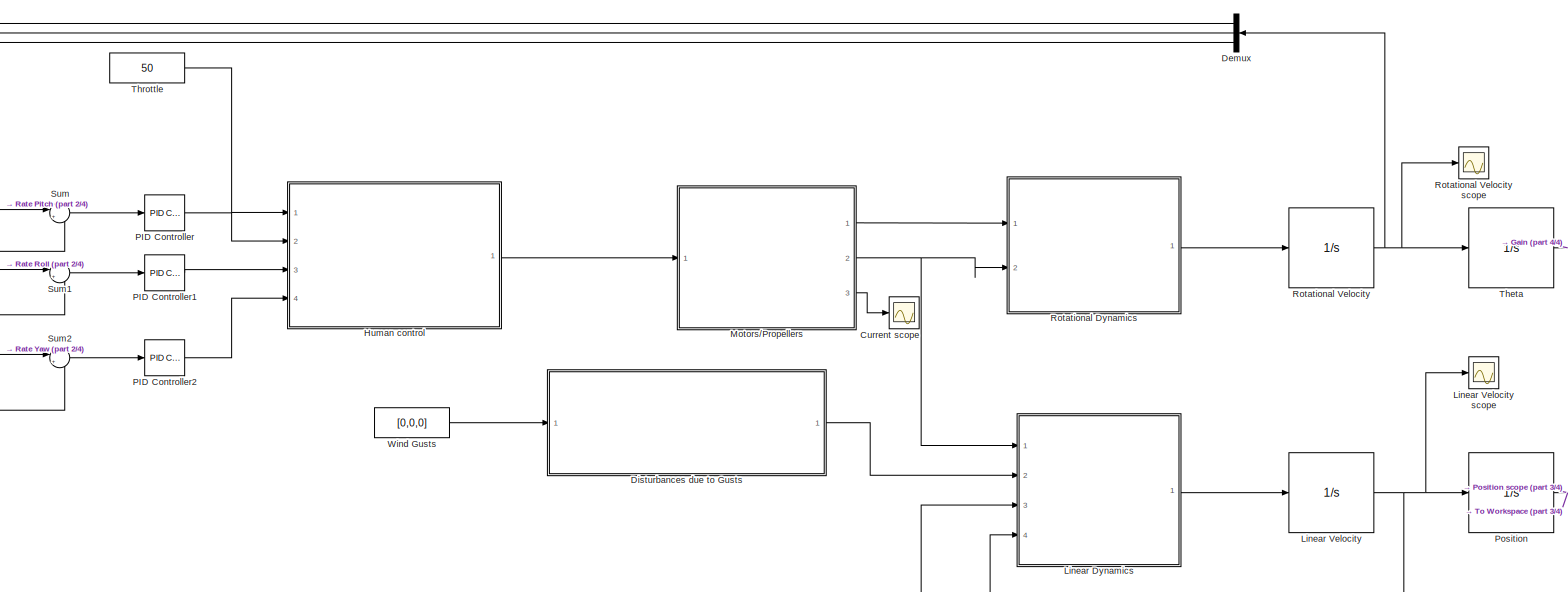
[diagram: root canvas - part 1/4, center side, full height]
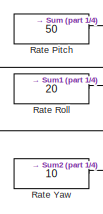
[diagram: root canvas - part 2/4, middle left region]
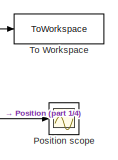
[diagram: root canvas - part 3/4, middle right region]
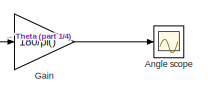
[diagram: root canvas - part 4/4, bottom right region]
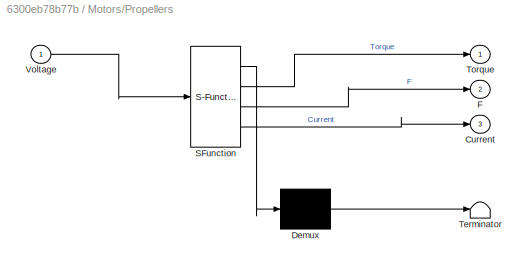
MODEL slx_6300eb78b77b
KIND model
CONFIG AbsTol = auto
CONFIG EnableMultiTasking = off
CONFIG FixedStep = auto
CONFIG MaxStep = auto
CONFIG MinStep = auto
CONFIG RelTol = 1e-3
CONFIG SampleTimeConstraint = Unconstrained
CONFIG SolverName = VariableStepAuto
CONFIG StartTime = 0.0
CONFIG StopTime = 10.0
BLOCK [Scope] Angle scope
  Floating = off
  NumInputPorts = 1
  Ports = [1]
  ScopeSpecificationString = Simulink.scopes.TimeScopeBlockCfg('CurrentConfiguration', extmgr.ConfigurationSet(extmgr.Configuration('Core','General UI',true),extmgr.Configuration('Core','Source UI',true),extmgr.Configuration('Sources','WiredSimulink',true,'DataLoggingVariableName','ScopeData1'),extmgr.Configuration('Visuals','Time Domain',true,'SerializedDisplays',{struct('MinYLimReal','-0.00000009','MaxYLimReal','0.00000079'...<+1502ch>
BLOCK [Scope] Current scope
  Floating = off
  NumInputPorts = 1
  Ports = [1]
  ScopeSpecificationString = Simulink.scopes.TimeScopeBlockCfg('CurrentConfiguration', extmgr.ConfigurationSet(extmgr.Configuration('Core','General UI',true),extmgr.Configuration('Core','Source UI',true),extmgr.Configuration('Sources','WiredSimulink',true,'DataLoggingVariableName','ScopeData6'),extmgr.Configuration('Visuals','Time Domain',true,'SerializedDisplays',{struct('MinYLimReal','54.939','MaxYLimReal','56.05503','YLabe...<+1501ch>
BLOCK [Demux] Demux
  Outputs = 3
  Ports = [1, 3]
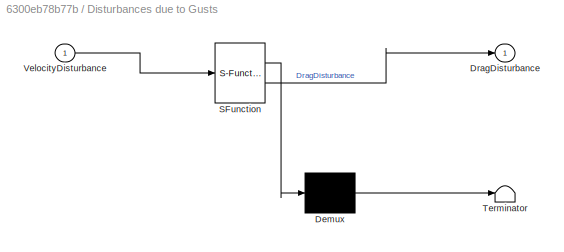
BLOCK [SubSystem] Disturbances due to Gusts
  ErrorFcn = Stateflow.Translate.translate
  PermitHierarchicalResolution = ExplicitOnly
  Ports = [1, 1]
  RequestExecContextInheritance = off
  SFBlockType = MATLAB Function
  TreatAsAtomicUnit = on
BLOCK [Demux] Disturbances due to Gusts/ Demux 
  Outputs = 1
  Ports = [1, 1]
BLOCK [S-Function] Disturbances due to Gusts/ SFunction 
  EnableBusSupport = on
  FunctionName = sf_sfun
  PortCounts = [1 2]
  Ports = [1, 2]
  SFcnIsStateOwnerBlock = off
  SFunctionDeploymentMode = off
  Tag = Stateflow S-Function 4
BLOCK [Terminator] Disturbances due to Gusts/ Terminator 
BLOCK [Outport] Disturbances due to Gusts/DragDisturbance
BLOCK [Inport] Disturbances due to Gusts/VelocityDisturbance
BLOCK [Gain] Gain
  Gain = 180/pi()
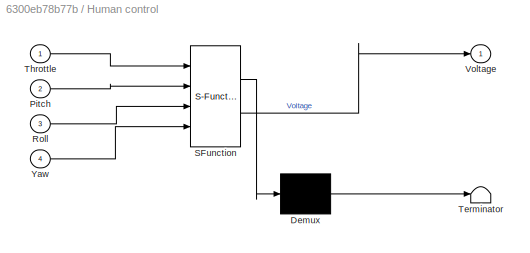
BLOCK [SubSystem] Human control
  ErrorFcn = Stateflow.Translate.translate
  PermitHierarchicalResolution = ExplicitOnly
  Ports = [4, 1]
  RequestExecContextInheritance = off
  SFBlockType = MATLAB Function
  TreatAsAtomicUnit = on
BLOCK [Demux] Human control/ Demux 
  Outputs = 1
  Ports = [1, 1]
BLOCK [S-Function] Human control/ SFunction 
  EnableBusSupport = on
  FunctionName = sf_sfun
  PortCounts = [4 2]
  Ports = [4, 2]
  SFcnIsStateOwnerBlock = off
  SFunctionDeploymentMode = off
  Tag = Stateflow S-Function 5
BLOCK [Terminator] Human control/ Terminator 
BLOCK [Inport] Human control/Pitch
  Port = 2
BLOCK [Inport] Human control/Roll
  Port = 3
BLOCK [Inport] Human control/Throttle
BLOCK [Outport] Human control/Voltage
BLOCK [Inport] Human control/Yaw
  Port = 4
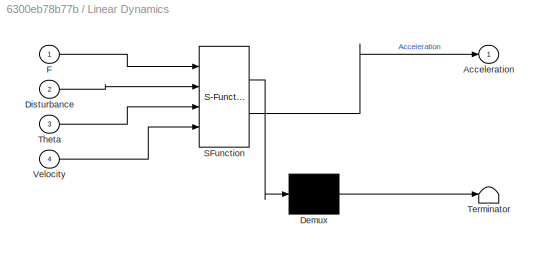
BLOCK [SubSystem] Linear Dynamics
  ErrorFcn = Stateflow.Translate.translate
  PermitHierarchicalResolution = ExplicitOnly
  Ports = [4, 1]
  RequestExecContextInheritance = off
  SFBlockType = MATLAB Function
  TreatAsAtomicUnit = on
BLOCK [Demux] Linear Dynamics/ Demux 
  Outputs = 1
  Ports = [1, 1]
BLOCK [S-Function] Linear Dynamics/ SFunction 
  EnableBusSupport = on
  FunctionName = sf_sfun
  PortCounts = [4 2]
  Ports = [4, 2]
  SFcnIsStateOwnerBlock = off
  SFunctionDeploymentMode = off
  Tag = Stateflow S-Function 3
BLOCK [Terminator] Linear Dynamics/ Terminator 
BLOCK [Outport] Linear Dynamics/Acceleration
BLOCK [Inport] Linear Dynamics/Disturbance
  Port = 2
BLOCK [Inport] Linear Dynamics/F
BLOCK [Inport] Linear Dynamics/Theta
  Port = 3
BLOCK [Inport] Linear Dynamics/Velocity
  Port = 4
BLOCK [Integrator] Linear Velocity
  Ports = [1, 1]
BLOCK [Scope] Linear Velocity scope
  Floating = off
  NumInputPorts = 1
  Ports = [1]
  ScopeSpecificationString = Simulink.scopes.TimeScopeBlockCfg('CurrentConfiguration', extmgr.ConfigurationSet(extmgr.Configuration('Core','General UI',true),extmgr.Configuration('Core','Source UI',true),extmgr.Configuration('Sources','WiredSimulink',true),extmgr.Configuration('Visuals','Time Domain',true,'SerializedDisplays',{struct('MinYLimReal','-1.60355','MaxYLimReal','14.43198','YLabelReal','','MinYLimMag','0.00000','Max...<+1408ch>
BLOCK [SubSystem] Motors//Propellers
  ErrorFcn = Stateflow.Translate.translate
  PermitHierarchicalResolution = ExplicitOnly
  Ports = [1, 3]
  RequestExecContextInheritance = off
  SFBlockType = MATLAB Function
  TreatAsAtomicUnit = on
BLOCK [Demux] Motors//Propellers/ Demux 
  Outputs = 1
  Ports = [1, 1]
BLOCK [S-Function] Motors//Propellers/ SFunction 
  EnableBusSupport = on
  FunctionName = sf_sfun
  PortCounts = [1 4]
  Ports = [1, 4]
  SFcnIsStateOwnerBlock = off
  SFunctionDeploymentMode = off
  Tag = Stateflow S-Function 2
BLOCK [Terminator] Motors//Propellers/ Terminator 
BLOCK [Outport] Motors//Propellers/Current
  Port = 3
BLOCK [Outport] Motors//Propellers/F
  Port = 2
BLOCK [Outport] Motors//Propellers/Torque
BLOCK [Inport] Motors//Propellers/Voltage
BLOCK [Reference] PID Controller  REF=pid_lib/PID Controller
  Ports = [1, 1]
  SourceBlock = pid_lib/PID Controller
  SourceProductBaseCode = SL
  SourceType = PID 1dof
BLOCK [Reference] PID Controller1  REF=pid_lib/PID Controller
  Ports = [1, 1]
  SourceBlock = pid_lib/PID Controller
  SourceProductBaseCode = SL
  SourceType = PID 1dof
BLOCK [Reference] PID Controller2  REF=pid_lib/PID Controller
  Ports = [1, 1]
  SourceBlock = pid_lib/PID Controller
  SourceProductBaseCode = SL
  SourceType = PID 1dof
BLOCK [Integrator] Position
  Ports = [1, 1]
BLOCK [Scope] Position scope
  Floating = off
  NumInputPorts = 1
  Ports = [1]
  ScopeSpecificationString = Simulink.scopes.TimeScopeBlockCfg('CurrentConfiguration', extmgr.ConfigurationSet(extmgr.Configuration('Core','General UI',true),extmgr.Configuration('Core','Source UI',true),extmgr.Configuration('Sources','WiredSimulink',true,'DataLoggingVariableName','ScopeData3'),extmgr.Configuration('Visuals','Time Domain',true,'SerializedDisplays',{struct('MinYLimReal','-6.24936','MaxYLimReal','56.24426','YLa...<+1428ch>
BLOCK [Constant] Rate Pitch
  Value = 50
BLOCK [Constant] Rate Roll
  Value = 20
BLOCK [Constant] Rate Yaw
  Value = 10
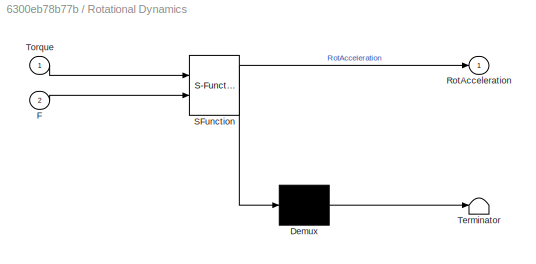
BLOCK [SubSystem] Rotational Dynamics
  ErrorFcn = Stateflow.Translate.translate
  PermitHierarchicalResolution = ExplicitOnly
  Ports = [2, 1]
  RequestExecContextInheritance = off
  SFBlockType = MATLAB Function
  TreatAsAtomicUnit = on
BLOCK [Demux] Rotational Dynamics/ Demux 
  Outputs = 1
  Ports = [1, 1]
BLOCK [S-Function] Rotational Dynamics/ SFunction 
  EnableBusSupport = on
  FunctionName = sf_sfun
  PortCounts = [2 2]
  Ports = [2, 2]
  SFcnIsStateOwnerBlock = off
  SFunctionDeploymentMode = off
  Tag = Stateflow S-Function 1
BLOCK [Terminator] Rotational Dynamics/ Terminator 
BLOCK [Inport] Rotational Dynamics/F
  Port = 2
BLOCK [Outport] Rotational Dynamics/RotAcceleration
BLOCK [Inport] Rotational Dynamics/Torque
BLOCK [Integrator] Rotational Velocity
  Ports = [1, 1]
BLOCK [Scope] Rotational Velocity scope
  Floating = off
  NumInputPorts = 1
  Ports = [1]
  ScopeSpecificationString = Simulink.scopes.TimeScopeBlockCfg('CurrentConfiguration', extmgr.ConfigurationSet(extmgr.Configuration('Core','General UI',true),extmgr.Configuration('Core','Source UI',true),extmgr.Configuration('Sources','WiredSimulink',true,'DataLoggingVariableName','ScopeData2'),extmgr.Configuration('Visuals','Time Domain',true,'SerializedDisplays',{struct('MinYLimReal','-6.26094','MaxYLimReal','56.34847','YLa...<+1459ch>
BLOCK [Sum] Sum
  Inputs = |+-
  Ports = [2, 1]
BLOCK [Sum] Sum1
  Inputs = |+-
  Ports = [2, 1]
BLOCK [Sum] Sum2
  Inputs = |+-
  Ports = [2, 1]
BLOCK [Integrator] Theta
  Ports = [1, 1]
BLOCK [Constant] Throttle
  Value = 50
BLOCK [ToWorkspace] To Workspace
  FixptAsFi = on
  MaxDataPoints = inf
  Ports = [1]
  SampleTime = -1
  Save2DSignal = 2-D array (concatenate along first dimension)
  VariableName = PositionVector
BLOCK [Constant] Wind Gusts
  Value = [0,0,0]
LINE Demux:1 -> Sum:2
LINE Demux:2 -> Sum1:2
LINE Demux:3 -> Sum2:2
LINE Disturbances due to Gusts:1 -> Linear Dynamics:2
LINE Gain:1 -> Angle scope:1
LINE Human control:1 -> Motors//Propellers:1
LINE Linear Dynamics:1 -> Linear Velocity:1
NET Linear Velocity:1 -> Linear Dynamics:4, Linear Velocity scope:1, Position:1
LINE Motors//Propellers:1 -> Rotational Dynamics:1
NET Motors//Propellers:2 -> Linear Dynamics:1, Rotational Dynamics:2
LINE Motors//Propellers:3 -> Current scope:1
LINE PID Controller1:1 -> Human control:3
LINE PID Controller2:1 -> Human control:4
LINE PID Controller:1 -> Human control:2
NET Position:1 -> Position scope:1, To Workspace:1
LINE Rate Pitch:1 -> Sum:1
LINE Rate Roll:1 -> Sum1:1
LINE Rate Yaw:1 -> Sum2:1
LINE Rotational Dynamics:1 -> Rotational Velocity:1
NET Rotational Velocity:1 -> Demux:1, Rotational Velocity scope:1, Theta:1
LINE Sum1:1 -> PID Controller1:1
LINE Sum2:1 -> PID Controller2:1
LINE Sum:1 -> PID Controller:1
NET Theta:1 -> Gain:1, Linear Dynamics:3
LINE Throttle:1 -> Human control:1
LINE Wind Gusts:1 -> Disturbances due to Gusts:1
note: NET lines group one-source signal fan-out (src -> all destinations, sorted); 1:1 wires keep LINE
CHART Rotational Dynamics states=1 transitions=1
  STATE_LABEL 'eML_blk_kernel()'
  STATE_LABEL 'SCRIPT:\nfunction RotAcceleration = fcn(Torque, F)\nMoment = [0 0 0];\nRotAcceleration = [0 0 0];\nI = [0.003 0.003 0.007];\n\nMoment(1) = (F(3) + F(4))*0.237/2 - (F(1) + F(2))*0.237/2\nMoment(2) = (F(3) + F(2))*0.237/2 - (F(1) + F(4))*0.237/2\nMoment(3) = Torque(4) - Torque(1) + Torque(2) - Torque(4)\n\nfor i = 1:3\n    RotAcceleration(i) = Moment(i)/I(i);\nend\n\n'
CHART Motors//Propellers states=1 transitions=1
  STATE_LABEL 'eML_blk_kernel()'
  STATE_LABEL 'SCRIPT:\nfunction [Torque, F, Current] = fcn(Voltage)\nRPM = [0 0 0 0]\nTorque = [0 0 0 0]\nCurrent = [0 0 0 0]\nF = [0 0 0 0]\n\nfor i=1:4\n    RPM(i) = -2.6932*Voltage(i)^3 + 1400*Voltage(i);\n    Ct = 2*10^ - 15*RPM(i)^3 - 4*10^ - 11*RPM(i)^2 + 3*10^ - 7*RPM(i) + 0.1013;\n    F(i) = Ct*1.225*(RPM(i)/60)^2*0.2^4;\n    Torque(i) = 4*10^ -14*RPM(i)^3 + 8*10^ -12*RPM(i)^2 + 3*10^ -6*RPM(i);\n    Current(i) = 1...<+19ch>'
CHART Linear Dynamics states=1 transitions=1
  STATE_LABEL 'eML_blk_kernel()'
  STATE_LABEL 'SCRIPT:\nfunction Acceleration = fcn(F, Disturbance, Theta, Velocity)\nm = 0.743;\ng = 9.81;\nA = [0.0197, 0.0197, 0.0512];\nrho = 1.225;\nCd = 1;\n\nAcceleration = [0 0 0];\nForce = [0 0 0];\nFprop = [0 0 0];\n\nFprop(1) = sin(Theta(2))*cos(Theta(1))*(F(1)+F(2)+F(3)+F(4));\nFprop(2) = sin(Theta(1))*cos(Theta(2))*(F(1)+F(2)+F(3)+F(4));\nFprop(3) = cos(Theta(2))*cos(Theta(1))*(F(1)+F(2)+F(3)+F(4));\n\nThetaXY = -a...<+821ch>'
CHART Disturbances due to Gusts states=1 transitions=1
  STATE_LABEL 'eML_blk_kernel()'
  STATE_LABEL 'SCRIPT:\nfunction DragDisturbance = fcn(VelocityDisturbance)\nA=[0.0197 0.0197 0.0197*2*1.3];\nDragDisturbance = [0 0 0];\nrho = 1.225;\nCd = 1;\n\nfor i=1:3\n    if VelocityDisturbance(i)<0\n        DragDisturbance(i) = 0.5*rho*VelocityDisturbance(i)^2*A(i)*Cd\n    else\n        DragDisturbance(i) = -0.5*rho*VelocityDisturbance(i)^2*A(i)*Cd\n    end\nend\n\n\n\n    \n'
CHART Human control states=1 transitions=1
  STATE_LABEL 'eML_blk_kernel()'
  STATE_LABEL 'SCRIPT:\nfunction Voltage = fcn(Throttle, Pitch, Roll, Yaw)\nCorrect = 0;\n\nif (Pitch/2+Roll/2+Yaw/2)>(100-Throttle)\n    Correct = (Pitch/2+Roll/2+Yaw/2) - (100-Throttle);\nend\n\nif (Pitch/2+Roll/2+Yaw/2)<Throttle\n    if Correct < ((Pitch/2+Roll/2+Yaw/2) - Throttle)\n        Correct = (Pitch/2+Roll/2+Yaw/2) - Throttle;\n    end\nend\n\nif Correct~=0\n    Pitch = Pitch - Correct/3*2;\n    Roll = Roll - Roll/3*...<+220ch>'
CHART  states=0 transitions=0
CHART  states=0 transitions=0
CHART  states=0 transitions=0
CHART  states=0 transitions=0
CHART  states=0 transitions=0
